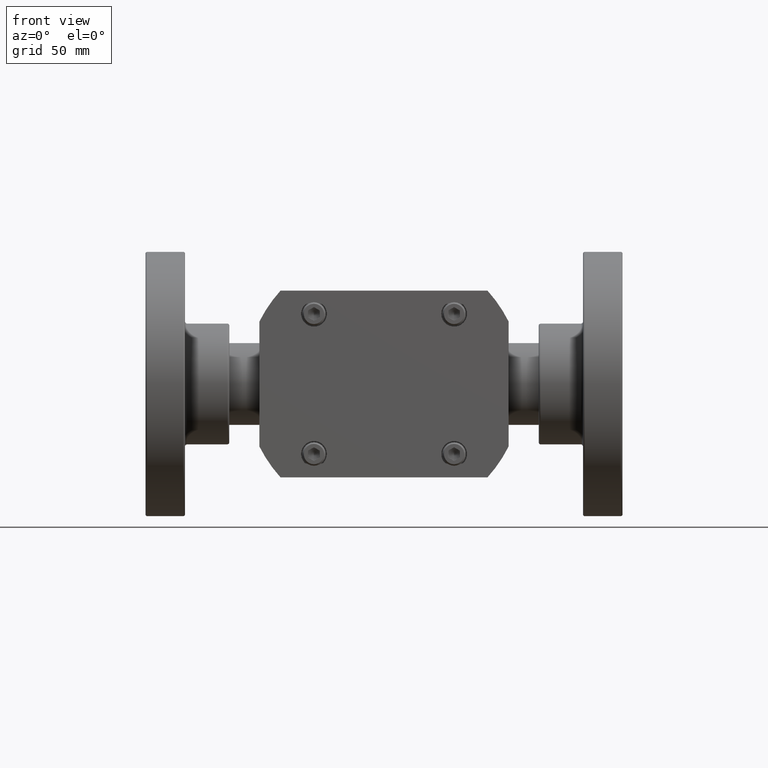
[diagram: clean part render]
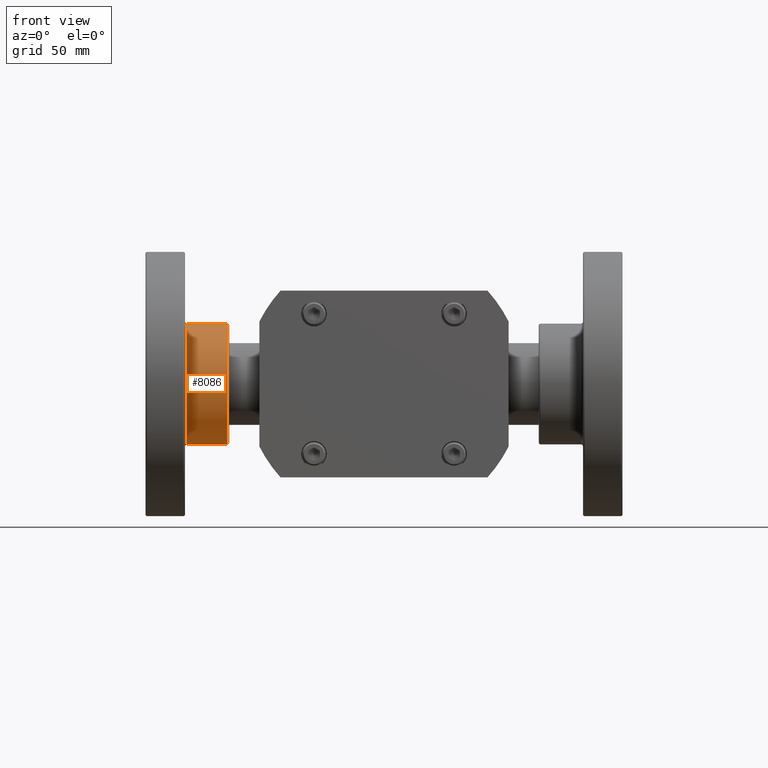
[diagram: same view with one face highlighted and labeled with its STEP entity id]
A machine part, front view. The second image highlights one B-rep face of the part: STEP entity #8086.
In plain terms, the highlighted cylindrical surface (bore or boss wall) has radius 24.6507 mm, axis along (1, -0, 0).
Its self-contained STEP definition (entity closure, byte-faithful):
#8052=CARTESIAN_POINT('',(-2.515000000000001,1.986247131141545,0.686247131141543));
#8053=VERTEX_POINT('',#8052);
#8054=CARTESIAN_POINT('',(-2.515000000000001,1.300000000000001,-1.134578E-015));
#8055=DIRECTION('',(1.0,-3.581287E-019,-3.581287E-019));
#8056=DIRECTION('',(-5.064704E-019,-0.707106781186548,-0.707106781186547));
#8057=AXIS2_PLACEMENT_3D('',#8054,#8055,#8056);
#8058=CIRCLE('',#8057,0.970500000000000);
#8059=EDGE_CURVE('',#8053,#8053,#8058,.T.);
#8067=CARTESIAN_POINT('',(-2.840000000000001,1.300000000000001,-1.134578E-015));
#8068=DIRECTION('',(1.0,-1.602374E-031,8.628166E-032));
#8069=DIRECTION('',(-3.472036E-017,0.707106781186548,0.707106781186547));
#8070=AXIS2_PLACEMENT_3D('',#8067,#8068,#8069);
#8071=CYLINDRICAL_SURFACE('',#8070,0.970500000000000);
#8072=CARTESIAN_POINT('',(-3.165000000000001,1.986247131141545,0.686247131141543));
#8073=VERTEX_POINT('',#8072);
#8074=CARTESIAN_POINT('',(-3.165000000000001,1.300000000000001,-1.134578E-015));
#8075=DIRECTION('',(-1.0,3.581287E-019,3.581287E-019));
#8076=DIRECTION('',(-5.064704E-019,-0.707106781186548,-0.707106781186547));
#8077=AXIS2_PLACEMENT_3D('',#8074,#8075,#8076);
#8078=CIRCLE('',#8077,0.970500000000000);
#8079=EDGE_CURVE('',#8073,#8073,#8078,.T.);
#8080=ORIENTED_EDGE('',*,*,#8079,.F.);
#8081=EDGE_LOOP('',(#8080));
#8082=FACE_OUTER_BOUND('',#8081,.T.);
#8083=ORIENTED_EDGE('',*,*,#8059,.F.);
#8084=EDGE_LOOP('',(#8083));
#8085=FACE_BOUND('',#8084,.T.);
#8086=ADVANCED_FACE('',(#8082,#8085),#8071,.T.);